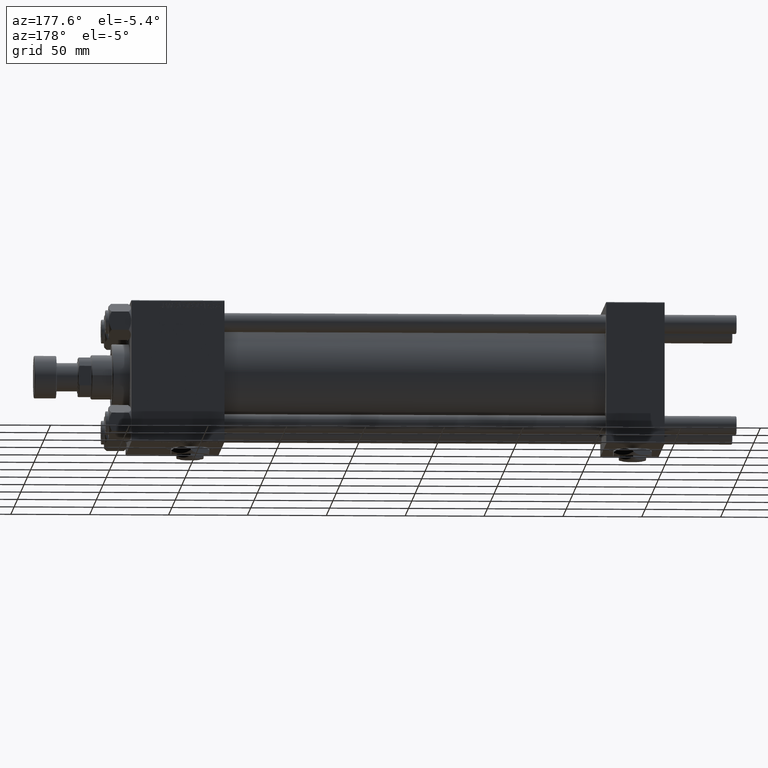
[diagram: clean part render]
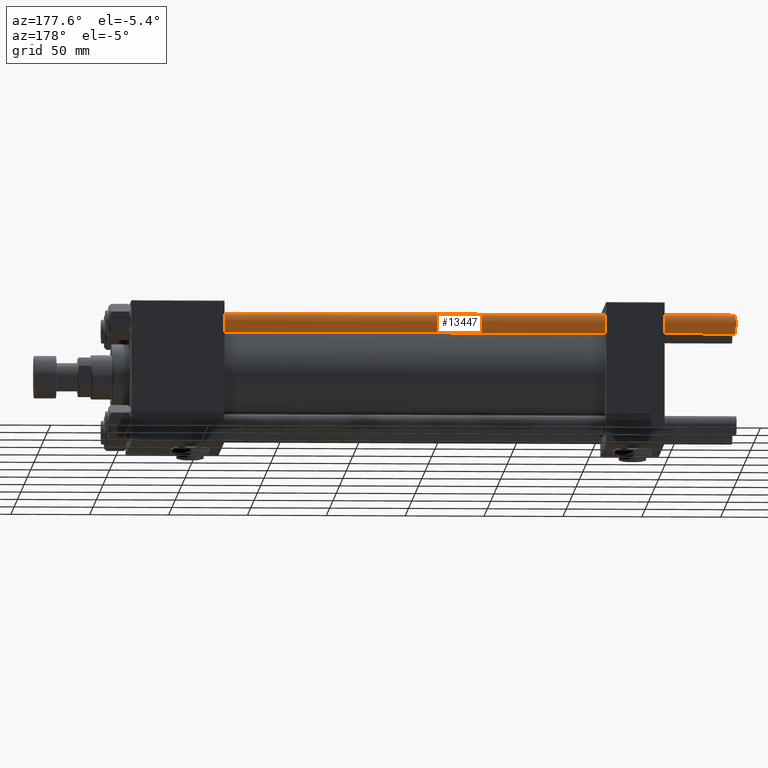
[diagram: same view with one face highlighted and labeled with its STEP entity id]
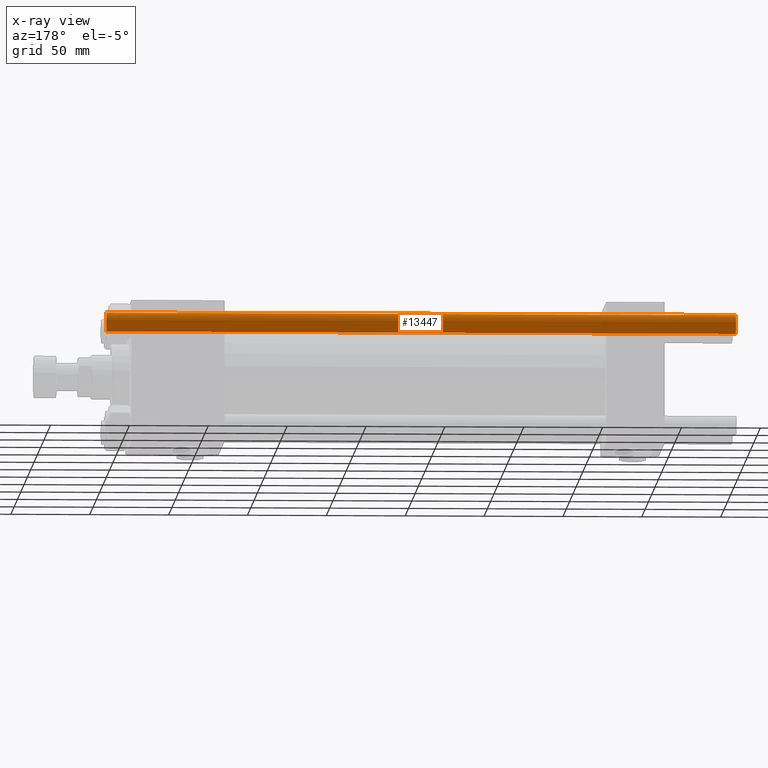
[diagram: x-ray of the same camera — body ghosted, the highlighted face saturated]
A machine part, auxiliary view. The second image highlights one B-rep face of the part: STEP entity #13447.
The next image is the same camera in x-ray: the body ghosted, the highlighted face saturated — about 0% of this face is hidden behind the body in this view.
In plain terms, the highlighted cylindrical surface (edge-blend (fillet) strip) has radius 6 mm, axis along (-1, -0, -0).
Its self-contained STEP definition (entity closure, byte-faithful):
#243 = EDGE_CURVE ( 'NONE', #6659, #48425, #8700, .T. ) ;
#2206 = DIRECTION ( 'NONE',  ( -0.000000000000000000, -0.000000000000000000, 1.000000000000000000 ) ) ;
#4327 = ORIENTED_EDGE ( 'NONE', *, *, #13389, .T. ) ;
#6160 = DIRECTION ( 'NONE',  ( -1.000000000000000000, 0.000000000000000000, 0.000000000000000000 ) ) ;
#6659 = VERTEX_POINT ( 'NONE', #21878 ) ;
#6996 = AXIS2_PLACEMENT_3D ( 'NONE', #52206, #31862, #15964 ) ;
#7134 = FACE_OUTER_BOUND ( 'NONE', #32156, .T. ) ;
#8700 = LINE ( 'NONE', #41502, #41777 ) ;
#8812 = CARTESIAN_POINT ( 'NONE',  ( 6.000000000000000888, 7.347880794884120722E-16, 0.5000000000000004441 ) ) ;
#10048 = EDGE_CURVE ( 'NONE', #35878, #6659, #34012, .T. ) ;
#13012 = VERTEX_POINT ( 'NONE', #41452 ) ;
#13389 = EDGE_CURVE ( 'NONE', #48425, #13012, #42572, .T. ) ;
#13447 = ADVANCED_FACE ( 'NONE', ( #7134 ), #43391, .T. ) ;
#14696 = AXIS2_PLACEMENT_3D ( 'NONE', #46381, #50335, #6160 ) ;
#15964 = DIRECTION ( 'NONE',  ( 1.000000000000000000, 0.000000000000000000, 0.000000000000000000 ) ) ;
#19902 = LINE ( 'NONE', #47959, #48988 ) ;
#20686 = ORIENTED_EDGE ( 'NONE', *, *, #10048, .T. ) ;
#21878 = CARTESIAN_POINT ( 'NONE',  ( 6.000000000000000888, 7.347880794884120722E-16, 399.5000000000000000 ) ) ;
#29759 = ORIENTED_EDGE ( 'NONE', *, *, #32914, .F. ) ;
#30005 = ORIENTED_EDGE ( 'NONE', *, *, #243, .T. ) ;
#30526 = CARTESIAN_POINT ( 'NONE',  ( 0.000000000000000000, 0.000000000000000000, 0.5000000000000004441 ) ) ;
#31862 = DIRECTION ( 'NONE',  ( 0.000000000000000000, 0.000000000000000000, -1.000000000000000000 ) ) ;
#32156 = EDGE_LOOP ( 'NONE', ( #20686, #30005, #4327, #29759 ) ) ;
#32914 = EDGE_CURVE ( 'NONE', #35878, #13012, #19902, .T. ) ;
#33712 = DIRECTION ( 'NONE',  ( 1.000000000000000000, 0.000000000000000000, 0.000000000000000000 ) ) ;
#34012 = CIRCLE ( 'NONE', #6996, 6.000000000000000888 ) ;
#35878 = VERTEX_POINT ( 'NONE', #43136 ) ;
#36307 = DIRECTION ( 'NONE',  ( -0.000000000000000000, -0.000000000000000000, -1.000000000000000000 ) ) ;
#41452 = CARTESIAN_POINT ( 'NONE',  ( -6.000000000000000888, 0.000000000000000000, 0.5000000000000004441 ) ) ;
#41502 = CARTESIAN_POINT ( 'NONE',  ( 6.000000000000000888, 7.347880794884120722E-16, 400.0000000000000000 ) ) ;
#41756 = AXIS2_PLACEMENT_3D ( 'NONE', #30526, #2206, #33712 ) ;
#41777 = VECTOR ( 'NONE', #44952, 1000.000000000000000 ) ;
#42572 = CIRCLE ( 'NONE', #41756, 6.000000000000000888 ) ;
#43136 = CARTESIAN_POINT ( 'NONE',  ( -6.000000000000000888, 0.000000000000000000, 399.5000000000000000 ) ) ;
#43391 = CYLINDRICAL_SURFACE ( 'NONE', #14696, 6.000000000000000888 ) ;
#44952 = DIRECTION ( 'NONE',  ( -0.000000000000000000, -0.000000000000000000, -1.000000000000000000 ) ) ;
#46381 = CARTESIAN_POINT ( 'NONE',  ( 0.000000000000000000, 0.000000000000000000, 400.0000000000000000 ) ) ;
#47959 = CARTESIAN_POINT ( 'NONE',  ( -6.000000000000000888, 0.000000000000000000, 400.0000000000000000 ) ) ;
#48425 = VERTEX_POINT ( 'NONE', #8812 ) ;
#48988 = VECTOR ( 'NONE', #36307, 1000.000000000000000 ) ;
#50335 = DIRECTION ( 'NONE',  ( -0.000000000000000000, -0.000000000000000000, -1.000000000000000000 ) ) ;
#52206 = CARTESIAN_POINT ( 'NONE',  ( 0.000000000000000000, 0.000000000000000000, 399.5000000000000000 ) ) ;